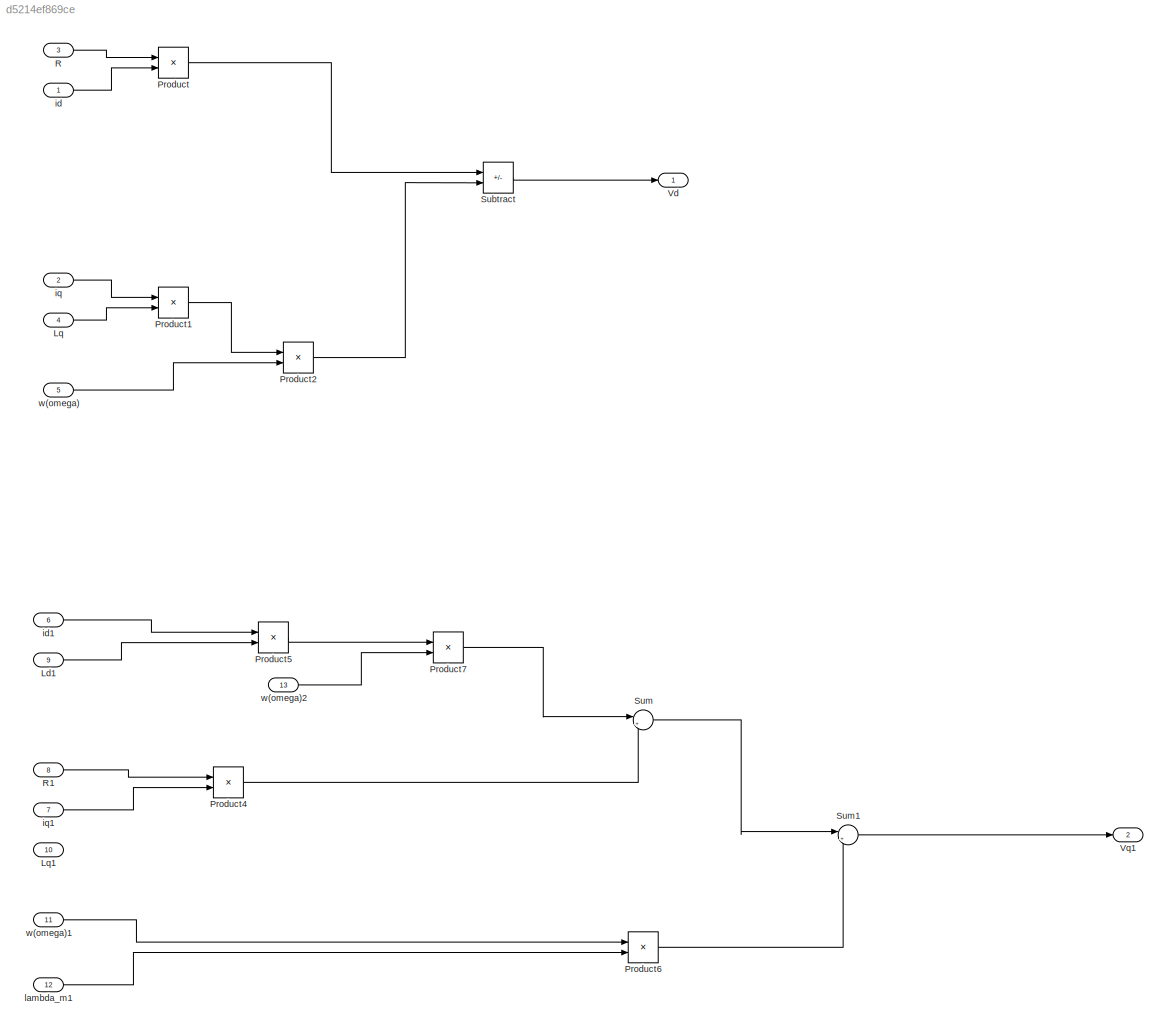
MODEL slx_d5214ef869ce
KIND model
CONFIG AbsTol = auto
CONFIG EnableMultiTasking = off
CONFIG FixedStep = auto
CONFIG MaxStep = auto
CONFIG MinStep = auto
CONFIG RelTol = 1e-3
CONFIG SampleTimeConstraint = Unconstrained
CONFIG SolverName = VariableStepAuto
CONFIG StartTime = 0.0
CONFIG StopTime = 10.0
BLOCK [Inport] Ld1
  Port = 9
BLOCK [Inport] Lq
  Port = 4
BLOCK [Inport] Lq1
  Port = 10
BLOCK [Product] Product
BLOCK [Product] Product1
BLOCK [Product] Product2
BLOCK [Product] Product4
BLOCK [Product] Product5
BLOCK [Product] Product6
BLOCK [Product] Product7
BLOCK [Inport] R
  Port = 3
BLOCK [Inport] R1
  Port = 8
BLOCK [Sum] Subtract
  IconShape = rectangular
  Inputs = +-
BLOCK [Sum] Sum
  Inputs = |++
BLOCK [Sum] Sum1
  Inputs = |++
BLOCK [Outport] Vd
BLOCK [Outport] Vq1
  Port = 2
BLOCK [Inport] id
BLOCK [Inport] id1
  Port = 6
BLOCK [Inport] iq
  Port = 2
BLOCK [Inport] iq1
  Port = 7
BLOCK [Inport] lambda_m1
  Port = 12
BLOCK [Inport] w(omega)
  Port = 5
BLOCK [Inport] w(omega)1
  Port = 11
BLOCK [Inport] w(omega)2
  Port = 13
LINE Ld1:1 -> Product5:2
LINE Lq:1 -> Product1:2
LINE Product1:1 -> Product2:1
LINE Product2:1 -> Subtract:2
LINE Product4:1 -> Sum:2
LINE Product5:1 -> Product7:1
LINE Product6:1 -> Sum1:2
LINE Product7:1 -> Sum:1
LINE Product:1 -> Subtract:1
LINE R1:1 -> Product4:1
LINE R:1 -> Product:1
LINE Subtract:1 -> Vd:1
LINE Sum1:1 -> Vq1:1
LINE Sum:1 -> Sum1:1
LINE id1:1 -> Product5:1
LINE id:1 -> Product:2
LINE iq1:1 -> Product4:2
LINE iq:1 -> Product1:1
LINE lambda_m1:1 -> Product6:2
LINE w(omega)1:1 -> Product6:1
LINE w(omega)2:1 -> Product7:2
LINE w(omega):1 -> Product2:2
